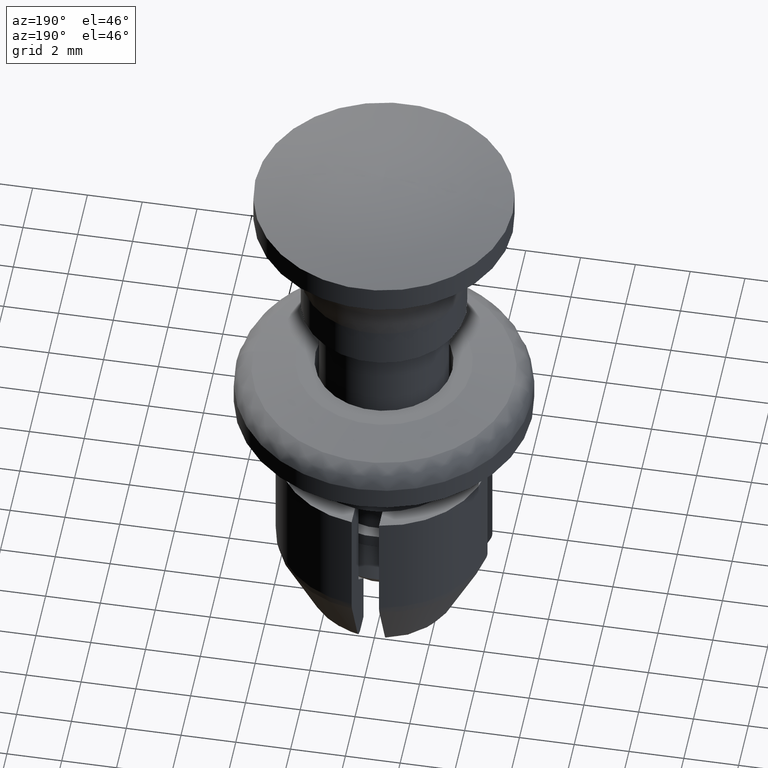
[diagram: clean part render]
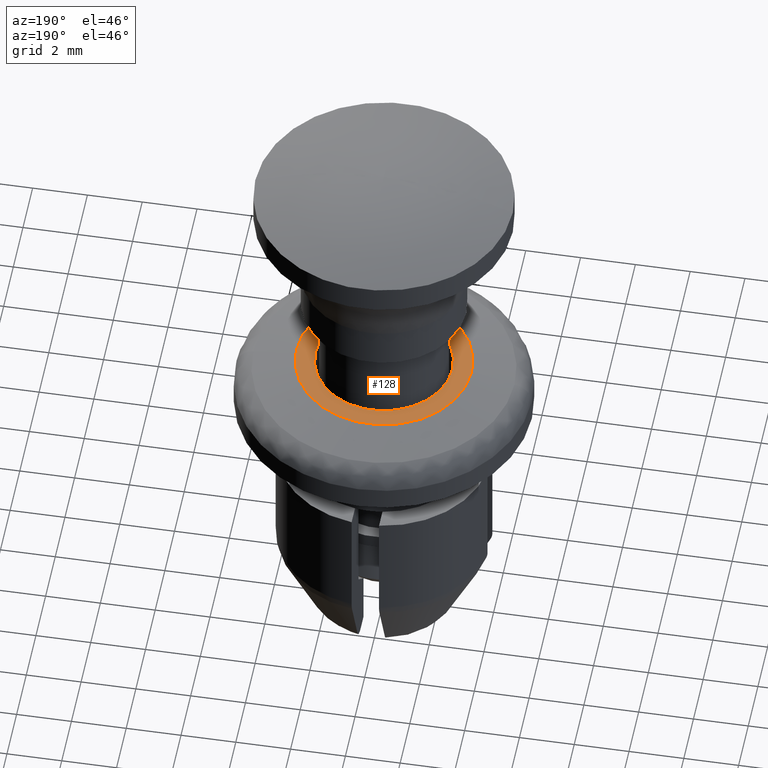
[diagram: same view with one face highlighted and labeled with its STEP entity id]
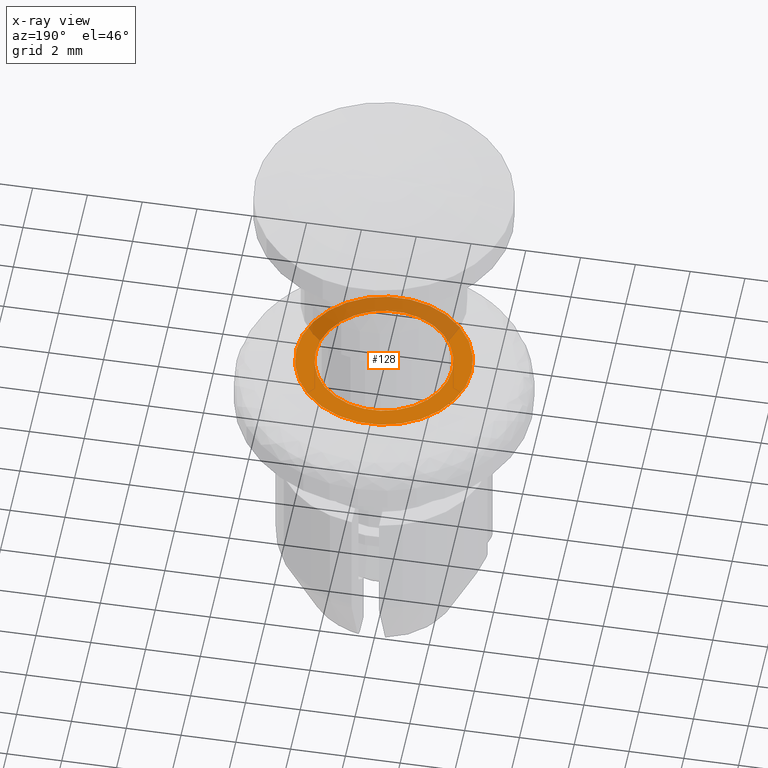
[diagram: x-ray of the same camera — body ghosted, the highlighted face saturated]
A machine part, auxiliary view. The second image highlights one B-rep face of the part: STEP entity #128.
The next image is the same camera in x-ray: the body ghosted, the highlighted face saturated — about 35% of this face is hidden behind the body in this view.
In plain terms, the highlighted planar face has unit normal (0, 0, 1).
Its self-contained STEP definition (entity closure, byte-faithful):
#128=ADVANCED_FACE('',(#353,#354),#352,.T.);
#352=PLANE('',#1098);
#353=FACE_OUTER_BOUND('',#1099,.T.);
#354=FACE_BOUND('',#1100,.T.);
#1095=CARTESIAN_POINT('',(-4.16000000000E+00,-6.65107510106E+00,0.00000000000E+00));
#1096=DIRECTION('',(0.00000000000E+00,0.00000000000E+00,1.00000000000E+00));
#1097=DIRECTION('',(1.00000000000E+00,0.00000000000E+00,0.00000000000E+00));
#1098=AXIS2_PLACEMENT_3D('',#1095,#1096,#1097);
#1099=EDGE_LOOP('',(#1700,#1701));
#1100=EDGE_LOOP('',(#1702,#1703));
#1700=ORIENTED_EDGE('',*,*,#2081,.F.);
#1701=ORIENTED_EDGE('',*,*,#2082,.F.);
#1702=ORIENTED_EDGE('',*,*,#2083,.F.);
#1703=ORIENTED_EDGE('',*,*,#2084,.F.);
#2081=EDGE_CURVE('',#2717,#2718,#2719,.T.);
#2082=EDGE_CURVE('',#2718,#2717,#2725,.T.);
#2083=EDGE_CURVE('',#2731,#2732,#2733,.T.);
#2084=EDGE_CURVE('',#2732,#2731,#2739,.T.);
#2717=VERTEX_POINT('',#3859);
#2718=VERTEX_POINT('',#3860);
#2719=CIRCLE('',#3864,3.20000000000E+00);
#2725=CIRCLE('',#3868,3.20000000000E+00);
#2731=VERTEX_POINT('',#3869);
#2732=VERTEX_POINT('',#3870);
#2733=CIRCLE('',#3874,2.50000000000E+00);
#2739=CIRCLE('',#3878,2.50000000000E+00);
#3859=CARTESIAN_POINT('',(3.20000000000E+00,1.48029736617E-16,0.00000000000E+00));
#3860=CARTESIAN_POINT('',(-3.20000000000E+00,0.00000000000E+00,0.00000000000E+00));
#3861=CARTESIAN_POINT('',(0.00000000000E+00,0.00000000000E+00,0.00000000000E+00));
#3862=DIRECTION('',(-0.00000000000E+00,0.00000000000E+00,-1.00000000000E+00));
#3863=DIRECTION('',(-1.00000000000E+00,-1.22460635382E-16,0.00000000000E+00));
#3864=AXIS2_PLACEMENT_3D('',#3861,#3862,#3863);
#3865=CARTESIAN_POINT('',(0.00000000000E+00,0.00000000000E+00,0.00000000000E+00));
#3866=DIRECTION('',(-0.00000000000E+00,0.00000000000E+00,-1.00000000000E+00));
#3867=DIRECTION('',(-1.00000000000E+00,-1.22460635382E-16,0.00000000000E+00));
#3868=AXIS2_PLACEMENT_3D('',#3865,#3866,#3867);
#3869=CARTESIAN_POINT('',(2.50000000000E+00,2.96059473233E-16,0.00000000000E+00));
#3870=CARTESIAN_POINT('',(-2.50000000000E+00,0.00000000000E+00,0.00000000000E+00));
#3871=CARTESIAN_POINT('',(0.00000000000E+00,0.00000000000E+00,0.00000000000E+00));
#3872=DIRECTION('',(0.00000000000E+00,0.00000000000E+00,1.00000000000E+00));
#3873=DIRECTION('',(-1.00000000000E+00,-1.22460635382E-16,0.00000000000E+00));
#3874=AXIS2_PLACEMENT_3D('',#3871,#3872,#3873);
#3875=CARTESIAN_POINT('',(0.00000000000E+00,0.00000000000E+00,0.00000000000E+00));
#3876=DIRECTION('',(0.00000000000E+00,0.00000000000E+00,1.00000000000E+00));
#3877=DIRECTION('',(-1.00000000000E+00,-1.22460635382E-16,0.00000000000E+00));
#3878=AXIS2_PLACEMENT_3D('',#3875,#3876,#3877);